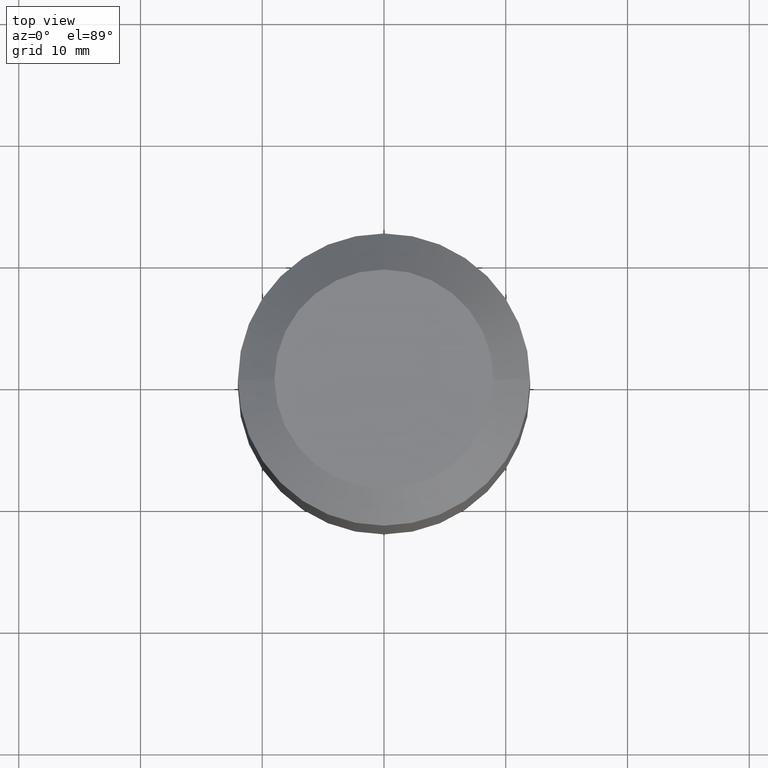
[diagram: clean part render]
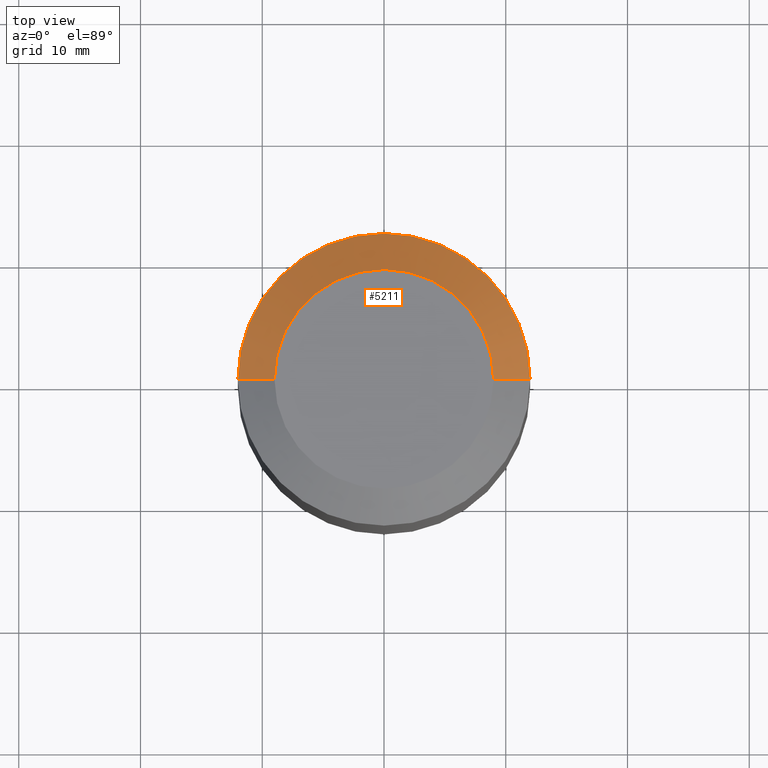
[diagram: same view with one face highlighted and labeled with its STEP entity id]
A machine part, top view. The second image highlights one B-rep face of the part: STEP entity #5211.
In plain terms, the highlighted conical surface has half-angle 51.927 deg.
Its self-contained STEP definition (entity closure, byte-faithful):
#141 = ORIENTED_EDGE ( 'NONE', *, *, #22214, .F. ) ;
#1350 = VERTEX_POINT ( 'NONE', #1455 ) ;
#1455 = CARTESIAN_POINT ( 'NONE',  ( 9.000000000000000000, 1.285879139104720633E-15, 49.54999999999999716 ) ) ;
#1762 = ORIENTED_EDGE ( 'NONE', *, *, #11176, .T. ) ;
#2714 = DIRECTION ( 'NONE',  ( -1.000000000000000000, 0.000000000000000000, 0.000000000000000000 ) ) ;
#3316 = EDGE_CURVE ( 'NONE', #15124, #24628, #7324, .T. ) ;
#3665 = DIRECTION ( 'NONE',  ( 1.000000000000000000, 0.000000000000000000, 0.000000000000000000 ) ) ;
#3888 = CARTESIAN_POINT ( 'NONE',  ( -12.00000000000000000, 0.000000000000000000, 47.19999999999999574 ) ) ;
#5211 = ADVANCED_FACE ( 'NONE', ( #19660 ), #19220, .T. ) ;
#7324 = CIRCLE ( 'NONE', #11904, 12.00000000000000000 ) ;
#7613 = DIRECTION ( 'NONE',  ( 0.000000000000000000, 0.000000000000000000, -1.000000000000000000 ) ) ;
#7688 = AXIS2_PLACEMENT_3D ( 'NONE', #23966, #22004, #3665 ) ;
#7966 = EDGE_CURVE ( 'NONE', #12866, #15124, #19210, .T. ) ;
#9267 = CARTESIAN_POINT ( 'NONE',  ( 0.000000000000000000, 0.000000000000000000, 49.54999999999999716 ) ) ;
#11176 = EDGE_CURVE ( 'NONE', #1350, #24628, #18809, .T. ) ;
#11180 = ORIENTED_EDGE ( 'NONE', *, *, #7966, .F. ) ;
#11904 = AXIS2_PLACEMENT_3D ( 'NONE', #25451, #7613, #15539 ) ;
#12866 = VERTEX_POINT ( 'NONE', #19973 ) ;
#12959 = DIRECTION ( 'NONE',  ( 0.7872280535289889469, 9.640763159532773675E-17, -0.6166619752643738295 ) ) ;
#15124 = VERTEX_POINT ( 'NONE', #3888 ) ;
#15539 = DIRECTION ( 'NONE',  ( 1.000000000000000000, 0.000000000000000000, 0.000000000000000000 ) ) ;
#16483 = DIRECTION ( 'NONE',  ( 0.000000000000000000, 0.000000000000000000, -1.000000000000000000 ) ) ;
#16608 = EDGE_LOOP ( 'NONE', ( #141, #1762, #19724, #11180 ) ) ;
#17087 = CARTESIAN_POINT ( 'NONE',  ( 12.00000000000000000, 1.469576158976823947E-15, 47.19999999999999574 ) ) ;
#17571 = AXIS2_PLACEMENT_3D ( 'NONE', #9267, #16483, #2714 ) ;
#18221 = VECTOR ( 'NONE', #12959, 1000.000000000000114 ) ;
#18809 = LINE ( 'NONE', #22859, #18221 ) ;
#18879 = CIRCLE ( 'NONE', #7688, 9.000000000000000000 ) ;
#19210 = LINE ( 'NONE', #24961, #20158 ) ;
#19220 = CONICAL_SURFACE ( 'NONE', #17571, 9.000000000000000000, 0.9063009277001402575 ) ;
#19660 = FACE_OUTER_BOUND ( 'NONE', #16608, .T. ) ;
#19724 = ORIENTED_EDGE ( 'NONE', *, *, #3316, .F. ) ;
#19973 = CARTESIAN_POINT ( 'NONE',  ( -9.000000000000000000, 0.000000000000000000, 49.54999999999999716 ) ) ;
#20158 = VECTOR ( 'NONE', #24829, 1000.000000000000114 ) ;
#22004 = DIRECTION ( 'NONE',  ( 0.000000000000000000, 0.000000000000000000, 1.000000000000000000 ) ) ;
#22214 = EDGE_CURVE ( 'NONE', #1350, #12866, #18879, .T. ) ;
#22859 = CARTESIAN_POINT ( 'NONE',  ( 9.000000000000000000, 1.102182119232617714E-15, 49.54999999999999716 ) ) ;
#23966 = CARTESIAN_POINT ( 'NONE',  ( 0.000000000000000000, 0.000000000000000000, 49.54999999999999716 ) ) ;
#24628 = VERTEX_POINT ( 'NONE', #17087 ) ;
#24829 = DIRECTION ( 'NONE',  ( -0.7872280535289889469, 0.000000000000000000, -0.6166619752643738295 ) ) ;
#24961 = CARTESIAN_POINT ( 'NONE',  ( -9.000000000000000000, 0.000000000000000000, 49.54999999999999716 ) ) ;
#25451 = CARTESIAN_POINT ( 'NONE',  ( 0.000000000000000000, 0.000000000000000000, 47.19999999999999574 ) ) ;